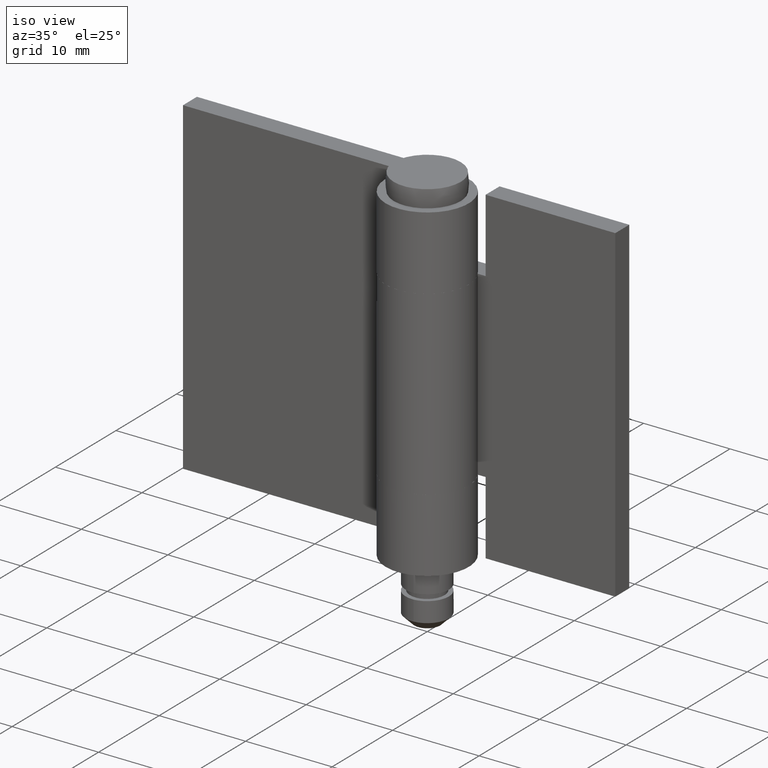
[diagram: clean part render]
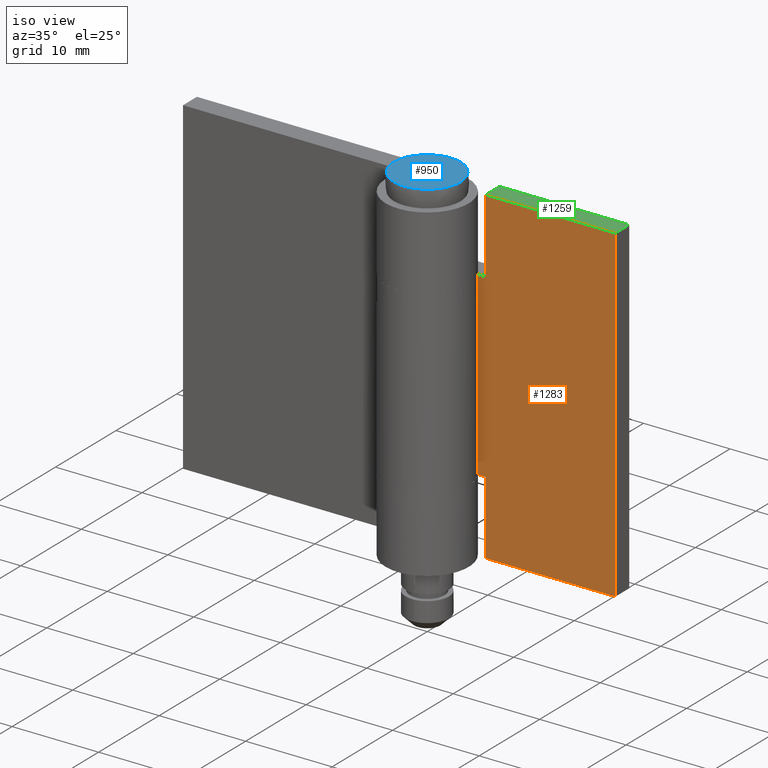
[diagram: same view with three faces highlighted in distinct colors, each labeled with its STEP entity id]
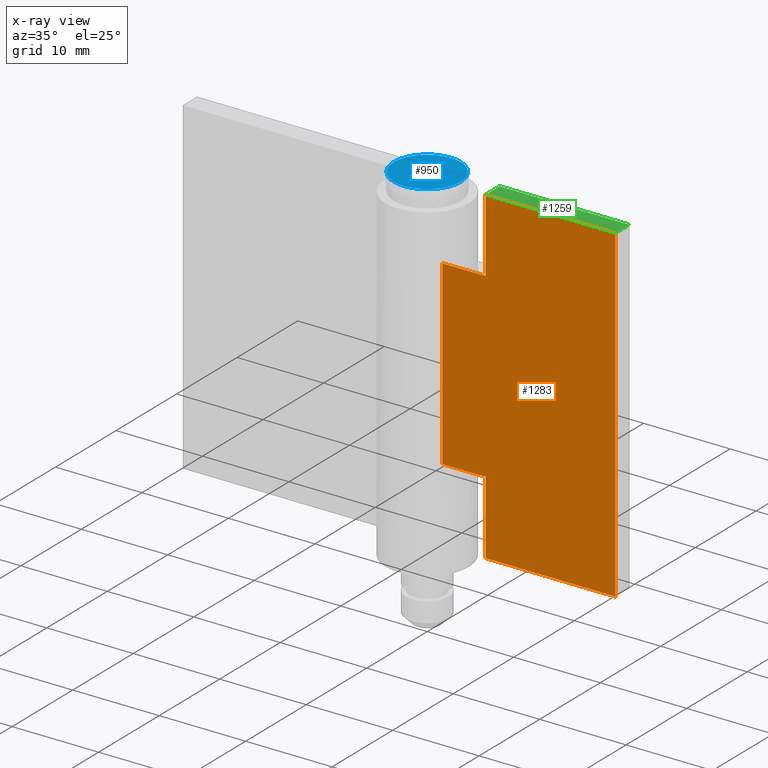
[diagram: x-ray of the same camera — body ghosted, the three highlighted faces saturated]
A machine part, iso view with three faces highlighted in distinct colors.
The next image is the same camera in x-ray (body ghosted, the three faces saturated) — at least one of them is partly hidden behind the body in this view.
Their STEP definitions:

[orange] entity #1283 — the highlighted face is a freeform B-spline surface patch.
#1027=CARTESIAN_POINT('',(5.0,2.499999999999945,8.500000000000000));
#1028=VERTEX_POINT('',#1027);
#1034=CARTESIAN_POINT('',(-4.592242E-016,2.500000000000000,8.500000000000000));
#1035=VERTEX_POINT('',#1034);
#1036=CARTESIAN_POINT('',(-4.592242E-016,2.500000000000000,8.500000000000000));
#1037=CARTESIAN_POINT('',(5.0,2.499999999999945,8.500000000000000));
#1038=QUASI_UNIFORM_CURVE('',1,(#1036,#1037),.UNSPECIFIED.,.F.,.U.);
#1039=EDGE_CURVE('',#1035,#1028,#1038,.T.);
#1083=CARTESIAN_POINT('',(5.0,2.499999999999945,0.0));
#1084=VERTEX_POINT('',#1083);
#1090=CARTESIAN_POINT('',(5.0,2.499999999999945,8.500000000000000));
#1091=CARTESIAN_POINT('',(5.0,2.499999999999945,0.0));
#1092=QUASI_UNIFORM_CURVE('',1,(#1090,#1091),.UNSPECIFIED.,.F.,.U.);
#1093=EDGE_CURVE('',#1028,#1084,#1092,.T.);
#1133=CARTESIAN_POINT('',(-4.592242E-016,2.500000000000000,29.500000000000000));
#1134=VERTEX_POINT('',#1133);
#1154=CARTESIAN_POINT('',(5.0,2.499999999999945,29.500000000000000));
#1155=VERTEX_POINT('',#1154);
#1156=CARTESIAN_POINT('',(5.0,2.499999999999945,29.500000000000000));
#1157=CARTESIAN_POINT('',(-4.592242E-016,2.500000000000000,29.500000000000000));
#1158=QUASI_UNIFORM_CURVE('',1,(#1156,#1157),.UNSPECIFIED.,.F.,.U.);
#1159=EDGE_CURVE('',#1155,#1134,#1158,.T.);
#1181=CARTESIAN_POINT('',(5.0,2.500000000000000,38.0));
#1182=VERTEX_POINT('',#1181);
#1196=CARTESIAN_POINT('',(5.0,2.500000000000000,38.0));
#1197=CARTESIAN_POINT('',(5.0,2.499999999999945,29.500000000000000));
#1198=QUASI_UNIFORM_CURVE('',1,(#1196,#1197),.UNSPECIFIED.,.F.,.U.);
#1199=EDGE_CURVE('',#1182,#1155,#1198,.T.);
#1217=CARTESIAN_POINT('',(20.0,2.500000000000000,0.0));
#1218=VERTEX_POINT('',#1217);
#1224=CARTESIAN_POINT('',(5.0,2.499999999999945,0.0));
#1225=CARTESIAN_POINT('',(20.0,2.500000000000000,0.0));
#1226=QUASI_UNIFORM_CURVE('',1,(#1224,#1225),.UNSPECIFIED.,.F.,.U.);
#1227=EDGE_CURVE('',#1084,#1218,#1226,.T.);
#1245=CARTESIAN_POINT('',(20.0,2.500000000000000,38.0));
#1246=VERTEX_POINT('',#1245);
#1247=CARTESIAN_POINT('',(5.0,2.500000000000000,38.0));
#1248=CARTESIAN_POINT('',(20.0,2.500000000000000,38.0));
#1249=QUASI_UNIFORM_CURVE('',1,(#1247,#1248),.UNSPECIFIED.,.F.,.U.);
#1250=EDGE_CURVE('',#1182,#1246,#1249,.T.);
#1260=CARTESIAN_POINT('',(-0.998999961236120,2.500000000000000,-1.898099926348628));
#1261=CARTESIAN_POINT('',(-0.998999961236120,2.500000000000000,39.898100945588048));
#1262=CARTESIAN_POINT('',(20.999000497677919,2.500000000000000,-1.898099926348628));
#1263=CARTESIAN_POINT('',(20.999000497677919,2.500000000000000,39.898100945588048));
#1264=B_SPLINE_SURFACE_WITH_KNOTS('',1,1,((#1260,#1262),(#1261,#1263)),.UNSPECIFIED.,.F.,.F.,.U.,(2,2),(2,2),(0.0,41.796200871936684),(0.0,21.998000458914039),.UNSPECIFIED.);
#1265=ORIENTED_EDGE('',*,*,#1039,.T.);
#1266=ORIENTED_EDGE('',*,*,#1093,.T.);
#1267=ORIENTED_EDGE('',*,*,#1227,.T.);
#1268=CARTESIAN_POINT('',(20.0,2.500000000000000,38.0));
#1269=CARTESIAN_POINT('',(20.0,2.500000000000000,0.0));
#1270=QUASI_UNIFORM_CURVE('',1,(#1268,#1269),.UNSPECIFIED.,.F.,.U.);
#1271=EDGE_CURVE('',#1246,#1218,#1270,.T.);
#1272=ORIENTED_EDGE('',*,*,#1271,.F.);
#1273=ORIENTED_EDGE('',*,*,#1250,.F.);
#1274=ORIENTED_EDGE('',*,*,#1199,.T.);
#1275=ORIENTED_EDGE('',*,*,#1159,.T.);
#1276=CARTESIAN_POINT('',(-4.592242E-016,2.500000000000000,29.500000000000000));
#1277=CARTESIAN_POINT('',(-4.592242E-016,2.500000000000000,8.500000000000000));
#1278=QUASI_UNIFORM_CURVE('',1,(#1276,#1277),.UNSPECIFIED.,.F.,.U.);
#1279=EDGE_CURVE('',#1134,#1035,#1278,.T.);
#1280=ORIENTED_EDGE('',*,*,#1279,.T.);
#1281=EDGE_LOOP('',(#1265,#1266,#1267,#1272,#1273,#1274,#1275,#1280));
#1282=FACE_OUTER_BOUND('',#1281,.T.);
#1283=ADVANCED_FACE('',(#1282),#1264,.F.);

[blue] entity #950 — the highlighted face is a freeform B-spline surface patch.
#900=CARTESIAN_POINT('',(-3.872983384359090,0.0,39.999999852239299));
#901=VERTEX_POINT('',#900);
#902=CARTESIAN_POINT('',(3.872983384359090,0.0,39.999999852239299));
#903=VERTEX_POINT('',#902);
#904=CARTESIAN_POINT('',(-3.872983384359090,0.0,39.999999852239299));
#905=CARTESIAN_POINT('',(-3.872983384359091,3.872983384359091,39.999999852239299));
#906=CARTESIAN_POINT('',(0.0,3.872983384359090,39.999999852239299));
#907=CARTESIAN_POINT('',(3.872983384359091,3.872983384359091,39.999999852239299));
#908=CARTESIAN_POINT('',(3.872983384359090,0.0,39.999999852239299));
#916=(BOUNDED_CURVE()B_SPLINE_CURVE(2,(#904,#905,#906,#907,#908),.UNSPECIFIED.,.F.,.U.)B_SPLINE_CURVE_WITH_KNOTS((3,2,3),(0.0,0.250000000000000,0.500000000000000),.UNSPECIFIED.)CURVE()GEOMETRIC_REPRESENTATION_ITEM()RATIONAL_B_SPLINE_CURVE((1.0,0.707106781186548,1.0,0.707106781186548,1.0))REPRESENTATION_ITEM(''));
#917=EDGE_CURVE('',#901,#903,#916,.T.);
#919=CARTESIAN_POINT('',(3.872983384359090,0.0,39.999999852239299));
#920=CARTESIAN_POINT('',(3.872983384359091,-3.872983384359091,39.999999852239299));
#921=CARTESIAN_POINT('',(0.0,-3.872983384359090,39.999999852239299));
#922=CARTESIAN_POINT('',(-3.872983384359091,-3.872983384359091,39.999999852239299));
#923=CARTESIAN_POINT('',(-3.872983384359090,0.0,39.999999852239299));
#931=(BOUNDED_CURVE()B_SPLINE_CURVE(2,(#919,#920,#921,#922,#923),.UNSPECIFIED.,.F.,.U.)B_SPLINE_CURVE_WITH_KNOTS((3,2,3),(0.500000000000000,0.750000000000000,1.0),.UNSPECIFIED.)CURVE()GEOMETRIC_REPRESENTATION_ITEM()RATIONAL_B_SPLINE_CURVE((1.0,0.707106781186548,1.0,0.707106781186548,1.0))REPRESENTATION_ITEM(''));
#932=EDGE_CURVE('',#903,#901,#931,.T.);
#941=CARTESIAN_POINT('',(4.259894482156971,-4.259894482156930,39.999999926119699));
#942=CARTESIAN_POINT('',(-4.259894620665650,-4.259894482156931,39.999999926119699));
#943=CARTESIAN_POINT('',(4.259894482156971,4.259894620665610,39.999999926119699));
#944=CARTESIAN_POINT('',(-4.259894620665650,4.259894620665609,39.999999926119699));
#945=B_SPLINE_SURFACE_WITH_KNOTS('',1,1,((#941,#943),(#942,#944)),.UNSPECIFIED.,.F.,.F.,.U.,(2,2),(2,2),(0.0,8.519789102822621),(0.0,8.519789102822539),.UNSPECIFIED.);
#946=ORIENTED_EDGE('',*,*,#932,.F.);
#947=ORIENTED_EDGE('',*,*,#917,.F.);
#948=EDGE_LOOP('',(#946,#947));
#949=FACE_OUTER_BOUND('',#948,.T.);
#950=ADVANCED_FACE('',(#949),#945,.F.);

[green] entity #1259 — the highlighted face is a freeform B-spline surface patch.
#1181=CARTESIAN_POINT('',(5.0,2.500000000000000,38.0));
#1182=VERTEX_POINT('',#1181);
#1183=CARTESIAN_POINT('',(5.0,4.799998999999940,38.0));
#1184=VERTEX_POINT('',#1183);
#1185=CARTESIAN_POINT('',(5.0,2.500000000000000,38.0));
#1186=CARTESIAN_POINT('',(5.0,4.799998999999940,38.0));
#1187=QUASI_UNIFORM_CURVE('',1,(#1185,#1186),.UNSPECIFIED.,.F.,.U.);
#1188=EDGE_CURVE('',#1182,#1184,#1187,.T.);
#1232=CARTESIAN_POINT('',(4.250750029072910,2.385115046190632,38.0));
#1233=CARTESIAN_POINT('',(20.749250373258452,2.385115046190632,38.0));
#1234=CARTESIAN_POINT('',(4.250750029072910,4.914884180008896,38.0));
#1235=CARTESIAN_POINT('',(20.749250373258452,4.914884180008896,38.0));
#1236=B_SPLINE_SURFACE_WITH_KNOTS('',1,1,((#1232,#1234),(#1233,#1235)),.UNSPECIFIED.,.F.,.F.,.U.,(2,2),(2,2),(0.0,16.498500344185530),(0.0,2.529769133818264),.UNSPECIFIED.);
#1237=CARTESIAN_POINT('',(20.0,4.799999000000000,38.0));
#1238=VERTEX_POINT('',#1237);
#1239=CARTESIAN_POINT('',(20.0,4.799999000000000,38.0));
#1240=CARTESIAN_POINT('',(5.0,4.799998999999940,38.0));
#1241=QUASI_UNIFORM_CURVE('',1,(#1239,#1240),.UNSPECIFIED.,.F.,.U.);
#1242=EDGE_CURVE('',#1238,#1184,#1241,.T.);
#1243=ORIENTED_EDGE('',*,*,#1242,.T.);
#1244=ORIENTED_EDGE('',*,*,#1188,.F.);
#1245=CARTESIAN_POINT('',(20.0,2.500000000000000,38.0));
#1246=VERTEX_POINT('',#1245);
#1247=CARTESIAN_POINT('',(5.0,2.500000000000000,38.0));
#1248=CARTESIAN_POINT('',(20.0,2.500000000000000,38.0));
#1249=QUASI_UNIFORM_CURVE('',1,(#1247,#1248),.UNSPECIFIED.,.F.,.U.);
#1250=EDGE_CURVE('',#1182,#1246,#1249,.T.);
#1251=ORIENTED_EDGE('',*,*,#1250,.T.);
#1252=CARTESIAN_POINT('',(20.0,2.500000000000000,38.0));
#1253=CARTESIAN_POINT('',(20.0,4.799999000000000,38.0));
#1254=QUASI_UNIFORM_CURVE('',1,(#1252,#1253),.UNSPECIFIED.,.F.,.U.);
#1255=EDGE_CURVE('',#1246,#1238,#1254,.T.);
#1256=ORIENTED_EDGE('',*,*,#1255,.T.);
#1257=EDGE_LOOP('',(#1243,#1244,#1251,#1256));
#1258=FACE_OUTER_BOUND('',#1257,.T.);
#1259=ADVANCED_FACE('',(#1258),#1236,.T.);